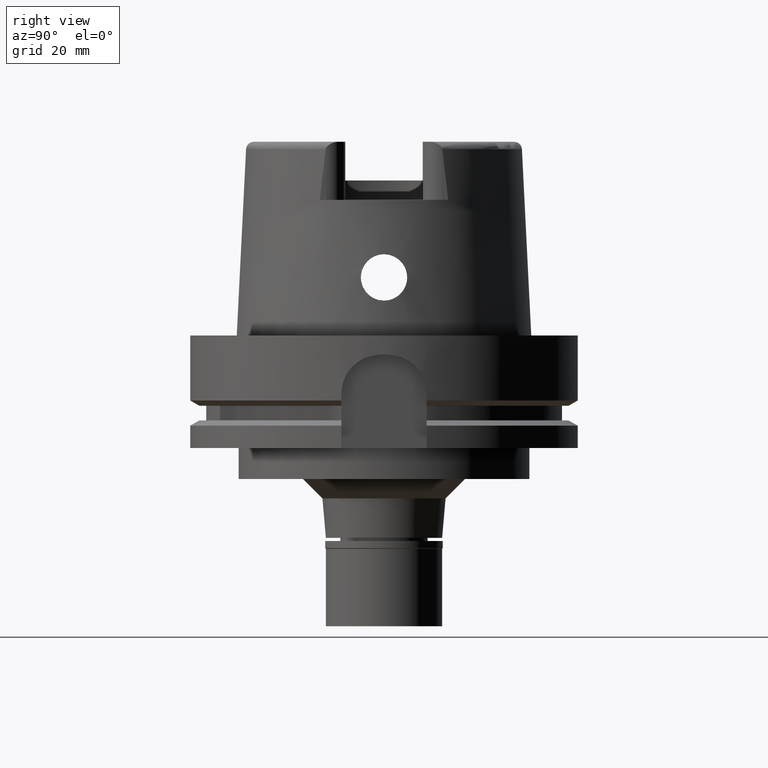
[diagram: clean part render]
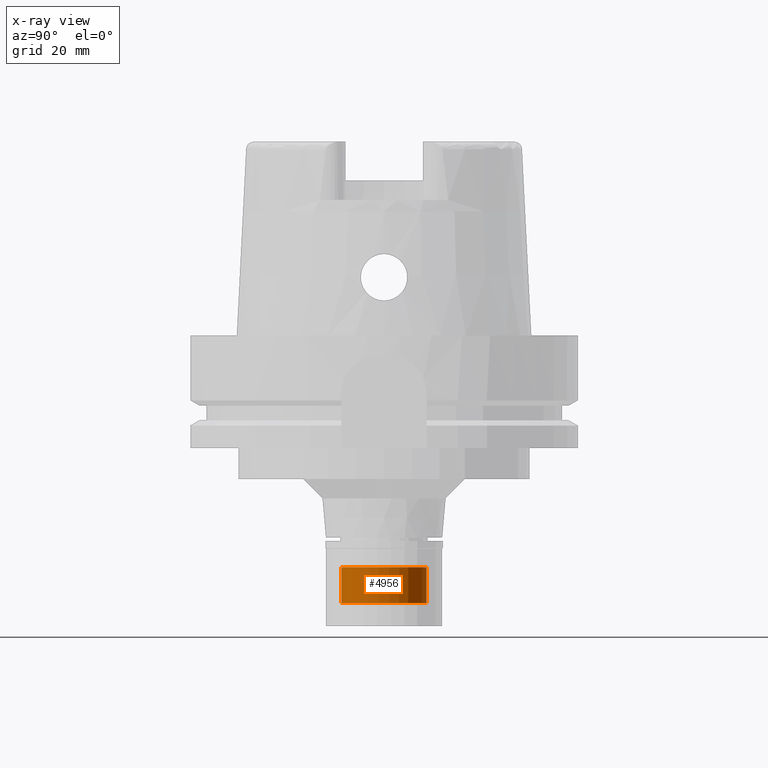
[diagram: x-ray — body ghosted, one internal face saturated and labeled with its STEP entity id]
A machine part, right view, then the same camera in x-ray: the body is ghosted and one INTERNAL B-rep face — a face not visible from any outside direction — is saturated and labeled: STEP entity #4956.
In plain terms, the highlighted cylindrical surface (partial cylindrical patch) has radius 11 mm, axis along (0, 0, -1).
Its self-contained STEP definition (entity closure, byte-faithful):
#99 = DIRECTION ( 'NONE',  ( 0.0000000000000000000, -1.000000000000000000, 0.0000000000000000000 ) ) ;
#418 = VERTEX_POINT ( 'NONE', #1081 ) ;
#586 = VECTOR ( 'NONE', #4213, 1000.000000000000000 ) ;
#668 = EDGE_CURVE ( 'NONE', #782, #1154, #2946, .T. ) ;
#782 = VERTEX_POINT ( 'NONE', #1426 ) ;
#832 = ORIENTED_EDGE ( 'NONE', *, *, #668, .T. ) ;
#975 = FACE_OUTER_BOUND ( 'NONE', #5249, .T. ) ;
#1081 = CARTESIAN_POINT ( 'NONE',  ( 0.0000000000000000000, 11.00000000000000000, -16.00000000000000000 ) ) ;
#1082 = DIRECTION ( 'NONE',  ( 0.0000000000000000000, 0.0000000000000000000, -1.000000000000000000 ) ) ;
#1154 = VERTEX_POINT ( 'NONE', #3864 ) ;
#1217 = AXIS2_PLACEMENT_3D ( 'NONE', #4592, #1082, #2017 ) ;
#1318 = ORIENTED_EDGE ( 'NONE', *, *, #2492, .T. ) ;
#1375 = CARTESIAN_POINT ( 'NONE',  ( 0.0000000000000000000, 0.0000000000000000000, 0.0000000000000000000 ) ) ;
#1426 = CARTESIAN_POINT ( 'NONE',  ( 0.0000000000000000000, -11.00000000000000000, -16.00000000000000000 ) ) ;
#1449 = CARTESIAN_POINT ( 'NONE',  ( 0.0000000000000000000, 11.00000000000000000, -16.00000000000000000 ) ) ;
#1488 = DIRECTION ( 'NONE',  ( 0.0000000000000000000, 0.0000000000000000000, 1.000000000000000000 ) ) ;
#1495 = ORIENTED_EDGE ( 'NONE', *, *, #2779, .T. ) ;
#1915 = ORIENTED_EDGE ( 'NONE', *, *, #2258, .F. ) ;
#2017 = DIRECTION ( 'NONE',  ( 0.0000000000000000000, 1.000000000000000000, 0.0000000000000000000 ) ) ;
#2099 = CARTESIAN_POINT ( 'NONE',  ( 0.0000000000000000000, -11.00000000000000000, -16.00000000000000000 ) ) ;
#2175 = LINE ( 'NONE', #1449, #4485 ) ;
#2258 = EDGE_CURVE ( 'NONE', #418, #3641, #2175, .T. ) ;
#2330 = DIRECTION ( 'NONE',  ( 0.0000000000000000000, 0.0000000000000000000, -1.000000000000000000 ) ) ;
#2492 = EDGE_CURVE ( 'NONE', #1154, #3641, #2684, .T. ) ;
#2684 = CIRCLE ( 'NONE', #4395, 11.00000000000000000 ) ;
#2700 = CARTESIAN_POINT ( 'NONE',  ( 0.0000000000000000000, 0.0000000000000000000, -6.799999999999999822 ) ) ;
#2779 = EDGE_CURVE ( 'NONE', #418, #782, #4380, .T. ) ;
#2780 = CYLINDRICAL_SURFACE ( 'NONE', #3784, 11.00000000000000000 ) ;
#2946 = LINE ( 'NONE', #2099, #586 ) ;
#3408 = CARTESIAN_POINT ( 'NONE',  ( 0.0000000000000000000, 11.00000000000000000, -6.799999999999999822 ) ) ;
#3641 = VERTEX_POINT ( 'NONE', #3408 ) ;
#3784 = AXIS2_PLACEMENT_3D ( 'NONE', #1375, #2330, #4045 ) ;
#3864 = CARTESIAN_POINT ( 'NONE',  ( 0.0000000000000000000, -11.00000000000000000, -6.799999999999999822 ) ) ;
#4045 = DIRECTION ( 'NONE',  ( 0.0000000000000000000, -1.000000000000000000, 0.0000000000000000000 ) ) ;
#4213 = DIRECTION ( 'NONE',  ( 0.0000000000000000000, 0.0000000000000000000, 1.000000000000000000 ) ) ;
#4380 = CIRCLE ( 'NONE', #1217, 11.00000000000000000 ) ;
#4395 = AXIS2_PLACEMENT_3D ( 'NONE', #2700, #1488, #99 ) ;
#4485 = VECTOR ( 'NONE', #5292, 1000.000000000000000 ) ;
#4592 = CARTESIAN_POINT ( 'NONE',  ( 0.0000000000000000000, 0.0000000000000000000, -16.00000000000000000 ) ) ;
#4956 = ADVANCED_FACE ( 'NONE', ( #975 ), #2780, .F. ) ;
#5249 = EDGE_LOOP ( 'NONE', ( #1495, #832, #1318, #1915 ) ) ;
#5292 = DIRECTION ( 'NONE',  ( 0.0000000000000000000, 0.0000000000000000000, 1.000000000000000000 ) ) ;